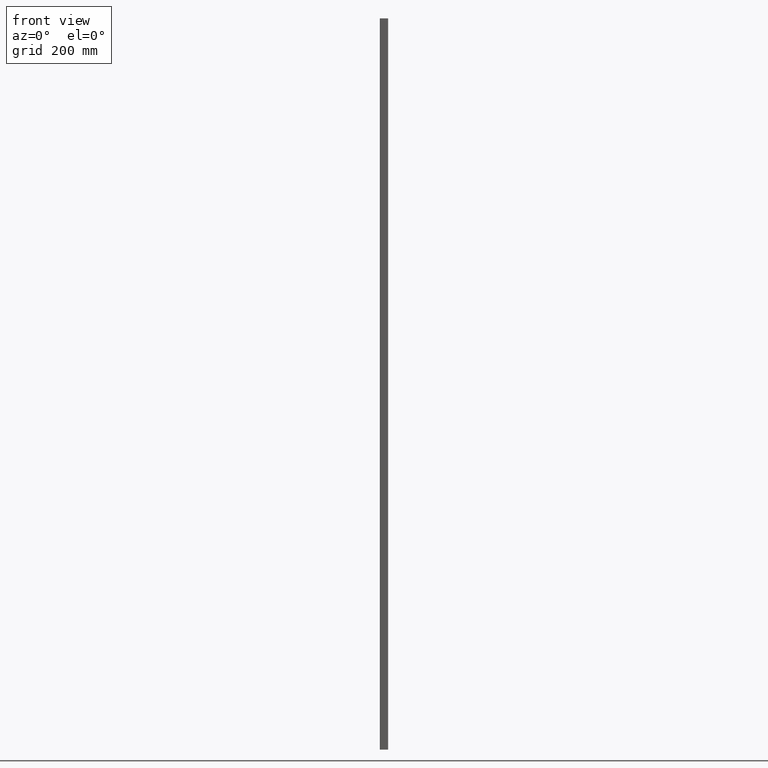
[diagram: clean part render]
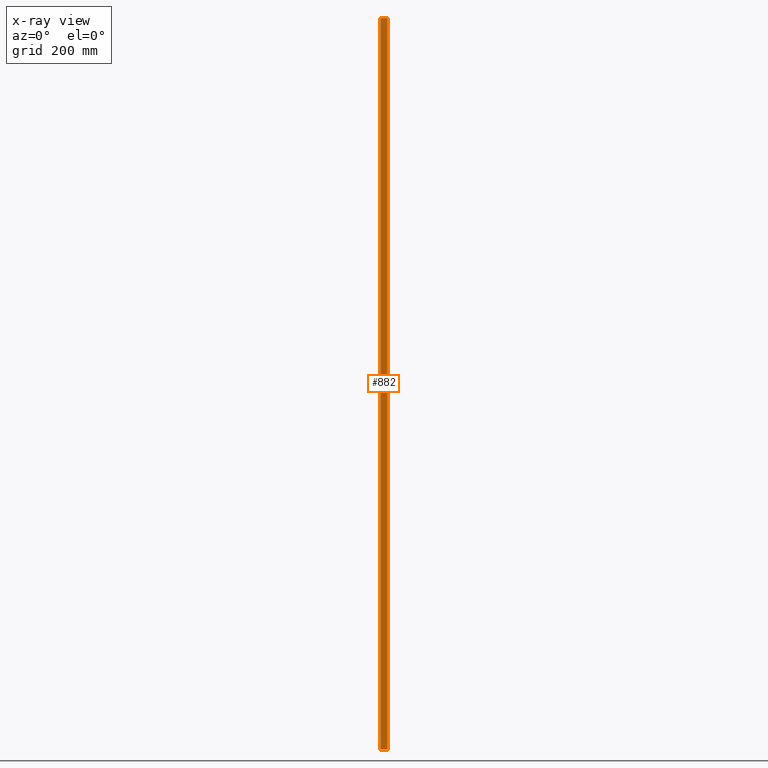
[diagram: x-ray — body ghosted, one internal face saturated and labeled with its STEP entity id]
A machine part, front view, then the same camera in x-ray: the body is ghosted and one INTERNAL B-rep face — a face not visible from any outside direction — is saturated and labeled: STEP entity #882.
In plain terms, the highlighted planar face has unit normal (0, -1, 0).
Its self-contained STEP definition (entity closure, byte-faithful):
#17 = VERTEX_POINT ( 'NONE', #274 ) ;
#35 = PLANE ( 'NONE',  #126 ) ;
#36 = ORIENTED_EDGE ( 'NONE', *, *, #680, .T. ) ;
#54 = CARTESIAN_POINT ( 'NONE',  ( -8.300000000000000711, 1.199999999999999956, -1825.000000000000000 ) ) ;
#60 = CARTESIAN_POINT ( 'NONE',  ( -8.300000000000000711, 1.199999999999999956, 0.000000000000000000 ) ) ;
#80 = CARTESIAN_POINT ( 'NONE',  ( -8.300000000000000711, 1.199999999999999956, -1825.000000000000000 ) ) ;
#90 = DIRECTION ( 'NONE',  ( 1.000000000000000000, 0.000000000000000000, 0.000000000000000000 ) ) ;
#126 = AXIS2_PLACEMENT_3D ( 'NONE', #232, #322, #379 ) ;
#149 = CARTESIAN_POINT ( 'NONE',  ( 8.300000000000000711, 1.200000000000000622, 0.000000000000000000 ) ) ;
#209 = CARTESIAN_POINT ( 'NONE',  ( -8.300000000000000711, 1.199999999999999956, -1825.000000000000000 ) ) ;
#214 = VECTOR ( 'NONE', #90, 1000.000000000000000 ) ;
#232 = CARTESIAN_POINT ( 'NONE',  ( -8.300000000000000711, 1.199999999999999956, -1825.000000000000000 ) ) ;
#274 = CARTESIAN_POINT ( 'NONE',  ( 8.300000000000000711, 1.200000000000000622, -1825.000000000000000 ) ) ;
#322 = DIRECTION ( 'NONE',  ( 0.000000000000000000, -1.000000000000000000, 0.000000000000000000 ) ) ;
#379 = DIRECTION ( 'NONE',  ( 0.000000000000000000, -0.000000000000000000, -1.000000000000000000 ) ) ;
#408 = LINE ( 'NONE', #54, #500 ) ;
#500 = VECTOR ( 'NONE', #765, 1000.000000000000000 ) ;
#548 = ORIENTED_EDGE ( 'NONE', *, *, #813, .T. ) ;
#558 = VECTOR ( 'NONE', #576, 1000.000000000000000 ) ;
#576 = DIRECTION ( 'NONE',  ( 0.000000000000000000, 0.000000000000000000, 1.000000000000000000 ) ) ;
#680 = EDGE_CURVE ( 'NONE', #886, #794, #408, .T. ) ;
#706 = VERTEX_POINT ( 'NONE', #149 ) ;
#765 = DIRECTION ( 'NONE',  ( 0.000000000000000000, 0.000000000000000000, 1.000000000000000000 ) ) ;
#768 = LINE ( 'NONE', #80, #214 ) ;
#778 = ORIENTED_EDGE ( 'NONE', *, *, #933, .F. ) ;
#794 = VERTEX_POINT ( 'NONE', #1022 ) ;
#808 = EDGE_LOOP ( 'NONE', ( #548, #1125, #778, #36 ) ) ;
#813 = EDGE_CURVE ( 'NONE', #794, #706, #847, .T. ) ;
#824 = VECTOR ( 'NONE', #1106, 1000.000000000000000 ) ;
#847 = LINE ( 'NONE', #60, #824 ) ;
#882 = ADVANCED_FACE ( 'NONE', ( #934 ), #35, .F. ) ;
#886 = VERTEX_POINT ( 'NONE', #209 ) ;
#888 = EDGE_CURVE ( 'NONE', #17, #706, #903, .T. ) ;
#903 = LINE ( 'NONE', #1009, #558 ) ;
#933 = EDGE_CURVE ( 'NONE', #886, #17, #768, .T. ) ;
#934 = FACE_OUTER_BOUND ( 'NONE', #808, .T. ) ;
#1009 = CARTESIAN_POINT ( 'NONE',  ( 8.300000000000000711, 1.200000000000000622, -1825.000000000000000 ) ) ;
#1022 = CARTESIAN_POINT ( 'NONE',  ( -8.300000000000000711, 1.199999999999999956, 0.000000000000000000 ) ) ;
#1106 = DIRECTION ( 'NONE',  ( 1.000000000000000000, 0.000000000000000000, 0.000000000000000000 ) ) ;
#1125 = ORIENTED_EDGE ( 'NONE', *, *, #888, .F. ) ;